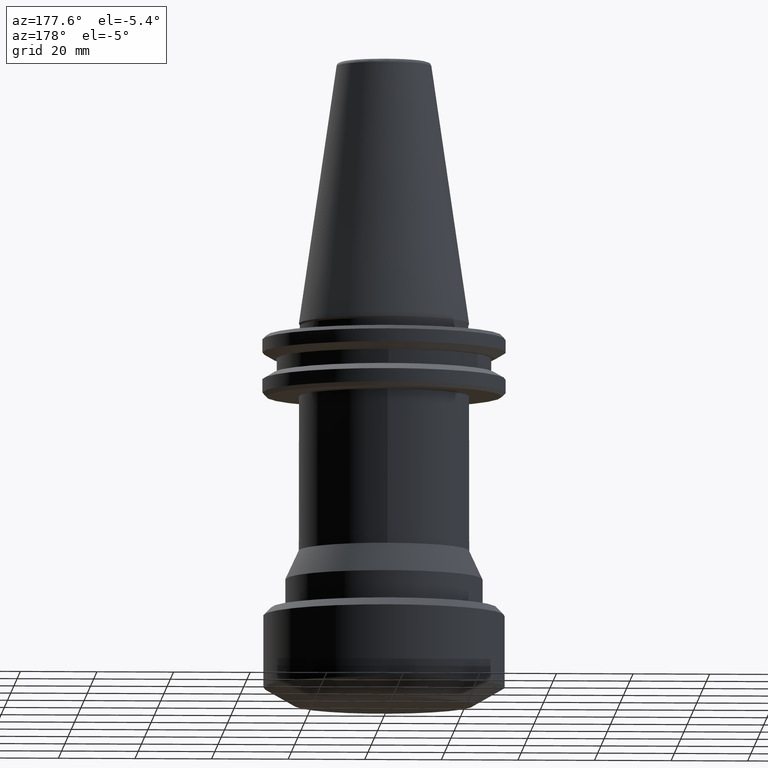
[diagram: clean part render]
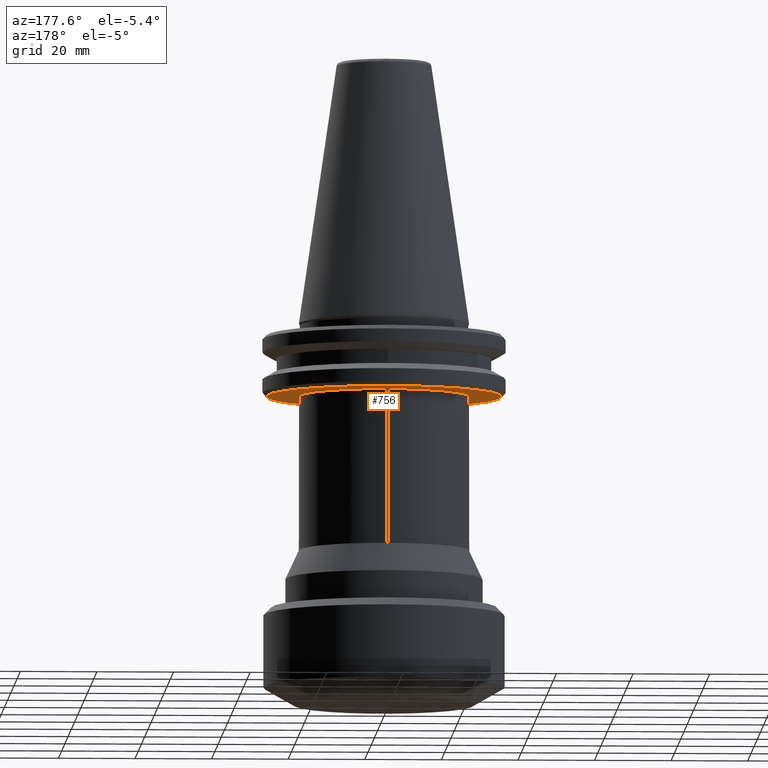
[diagram: same view with one face highlighted and labeled with its STEP entity id]
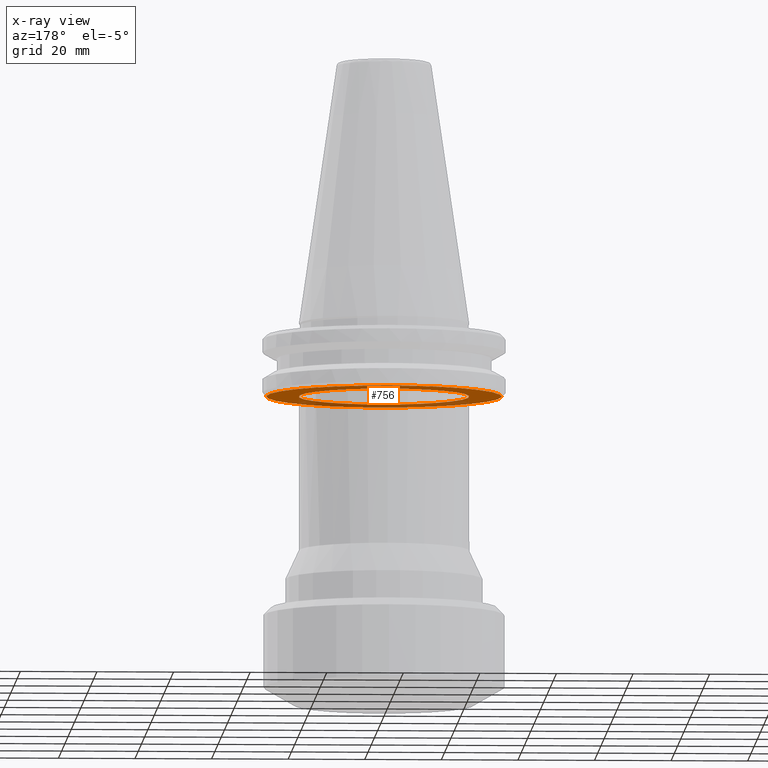
[diagram: x-ray of the same camera — body ghosted, the highlighted face saturated]
A machine part, auxiliary view. The second image highlights one B-rep face of the part: STEP entity #756.
The next image is the same camera in x-ray: the body ghosted, the highlighted face saturated — about 30% of this face is hidden behind the body in this view.
In plain terms, the highlighted planar face has unit normal (0, 0, -1).
Its self-contained STEP definition (entity closure, byte-faithful):
#109 = PLANE ( 'NONE',  #1327 ) ;
#123 = ORIENTED_EDGE ( 'NONE', *, *, #1823, .F. ) ;
#148 = ORIENTED_EDGE ( 'NONE', *, *, #1803, .F. ) ;
#168 = CIRCLE ( 'NONE', #1462, 30.75000000000083100 ) ;
#185 = CIRCLE ( 'NONE', #1554, 30.75000000000083100 ) ;
#199 = AXIS2_PLACEMENT_3D ( 'NONE', #672, #1684, #829 ) ;
#246 = DIRECTION ( 'NONE',  ( 0.0000000000000000000, -7.796510004390144800E-017, 1.000000000000000000 ) ) ;
#273 = DIRECTION ( 'NONE',  ( 0.0000000000000000000, 0.0000000000000000000, -1.000000000000000000 ) ) ;
#284 = CARTESIAN_POINT ( 'NONE',  ( 0.0000000000000000000, 0.0000000000000000000, -19.09999999999995200 ) ) ;
#434 = DIRECTION ( 'NONE',  ( 1.000000000000000000, 0.0000000000000000000, 0.0000000000000000000 ) ) ;
#584 = CARTESIAN_POINT ( 'NONE',  ( 2.724839128102860600E-015, 22.25000000000000000, -19.10000000000000500 ) ) ;
#672 = CARTESIAN_POINT ( 'NONE',  ( 0.0000000000000000000, -8.103868526606689900E-016, -19.10000000000000500 ) ) ;
#716 = FACE_OUTER_BOUND ( 'NONE', #1319, .T. ) ;
#729 = ORIENTED_EDGE ( 'NONE', *, *, #1329, .T. ) ;
#756 = ADVANCED_FACE ( 'NONE', ( #1133, #716 ), #109, .T. ) ;
#829 = DIRECTION ( 'NONE',  ( 0.0000000000000000000, -1.000000000000000000, 0.0000000000000000000 ) ) ;
#885 = CARTESIAN_POINT ( 'NONE',  ( 0.0000000000000000000, 0.0000000000000000000, -19.09999999999995200 ) ) ;
#904 = VERTEX_POINT ( 'NONE', #1699 ) ;
#1042 = DIRECTION ( 'NONE',  ( 1.000000000000000000, 0.0000000000000000000, 0.0000000000000000000 ) ) ;
#1133 = FACE_BOUND ( 'NONE', #1663, .T. ) ;
#1149 = CARTESIAN_POINT ( 'NONE',  ( 0.0000000000000000000, -8.103868526606689900E-016, -19.10000000000000500 ) ) ;
#1290 = DIRECTION ( 'NONE',  ( 0.0000000000000000000, -1.000000000000000000, 0.0000000000000000000 ) ) ;
#1305 = CARTESIAN_POINT ( 'NONE',  ( 30.95132634999999900, -29.85996502400000800, -19.10000000000000100 ) ) ;
#1312 = DIRECTION ( 'NONE',  ( -1.000000000000000000, 0.0000000000000000000, -0.0000000000000000000 ) ) ;
#1319 = EDGE_LOOP ( 'NONE', ( #123, #148 ) ) ;
#1324 = DIRECTION ( 'NONE',  ( -0.0000000000000000000, -0.0000000000000000000, 1.000000000000000000 ) ) ;
#1327 = AXIS2_PLACEMENT_3D ( 'NONE', #1305, #273, #1312 ) ;
#1329 = EDGE_CURVE ( 'NONE', #1851, #1750, #1787, .T. ) ;
#1334 = CARTESIAN_POINT ( 'NONE',  ( 0.0000000000000000000, -22.25000000000000000, -19.10000000000000500 ) ) ;
#1449 = EDGE_CURVE ( 'NONE', #1750, #1851, #1827, .T. ) ;
#1462 = AXIS2_PLACEMENT_3D ( 'NONE', #885, #1900, #1042 ) ;
#1530 = AXIS2_PLACEMENT_3D ( 'NONE', #1149, #246, #1290 ) ;
#1554 = AXIS2_PLACEMENT_3D ( 'NONE', #284, #1324, #434 ) ;
#1559 = VERTEX_POINT ( 'NONE', #1707 ) ;
#1663 = EDGE_LOOP ( 'NONE', ( #1798, #729 ) ) ;
#1684 = DIRECTION ( 'NONE',  ( 0.0000000000000000000, -7.796510004390144800E-017, 1.000000000000000000 ) ) ;
#1699 = CARTESIAN_POINT ( 'NONE',  ( 30.75000000000083100, 0.0000000000000000000, -19.09999999999995200 ) ) ;
#1707 = CARTESIAN_POINT ( 'NONE',  ( -30.75000000000083100, 3.827021247335539600E-015, -19.09999999999995200 ) ) ;
#1750 = VERTEX_POINT ( 'NONE', #1334 ) ;
#1787 = CIRCLE ( 'NONE', #1530, 22.25000000000000000 ) ;
#1798 = ORIENTED_EDGE ( 'NONE', *, *, #1449, .T. ) ;
#1803 = EDGE_CURVE ( 'NONE', #1559, #904, #168, .T. ) ;
#1823 = EDGE_CURVE ( 'NONE', #904, #1559, #185, .T. ) ;
#1827 = CIRCLE ( 'NONE', #199, 22.25000000000000000 ) ;
#1851 = VERTEX_POINT ( 'NONE', #584 ) ;
#1900 = DIRECTION ( 'NONE',  ( -0.0000000000000000000, -0.0000000000000000000, 1.000000000000000000 ) ) ;